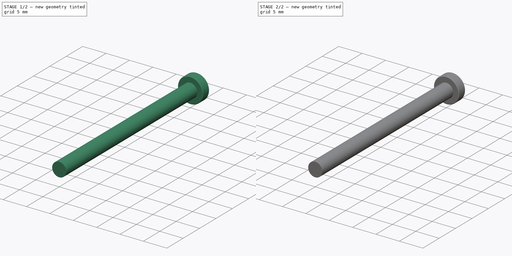
[diagram: build sequence overview — one tinted view per stage of 2, left to right]
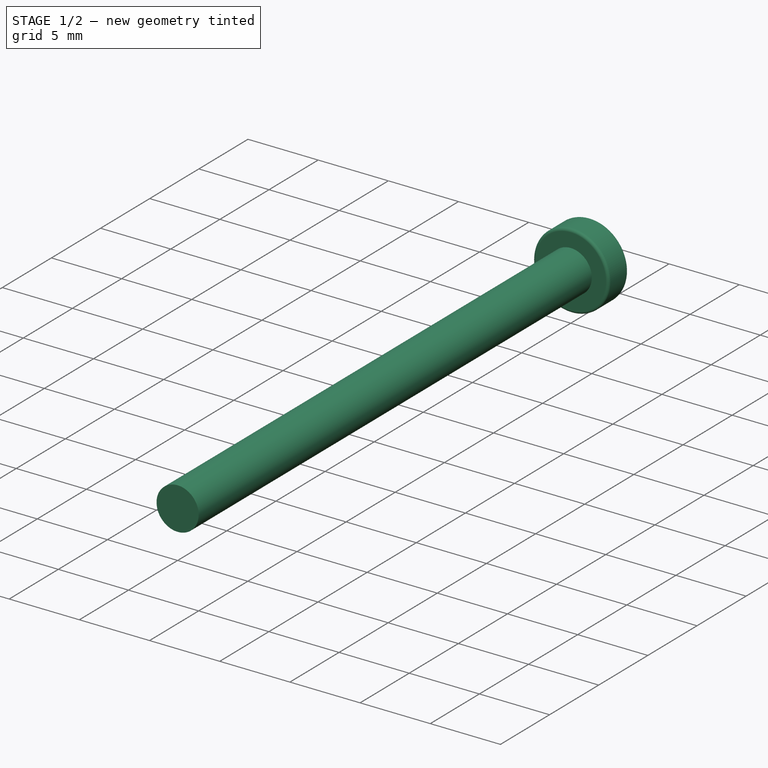
[diagram: stage 1 of 2 — iso view after this stage's code; geometry added in this stage tinted green]
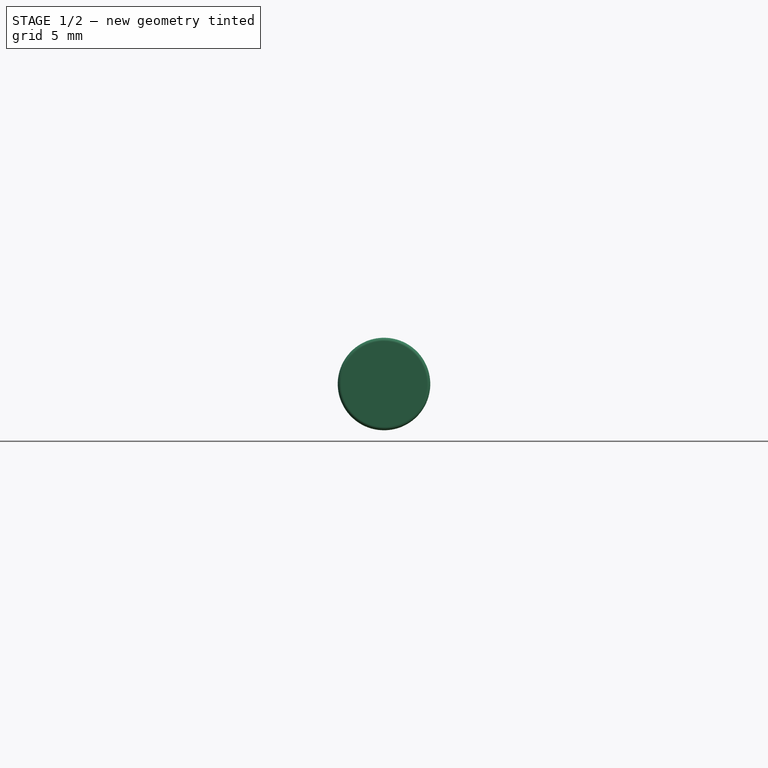
[diagram: stage 1 of 2 — front view after this stage's code; geometry added in this stage tinted green]
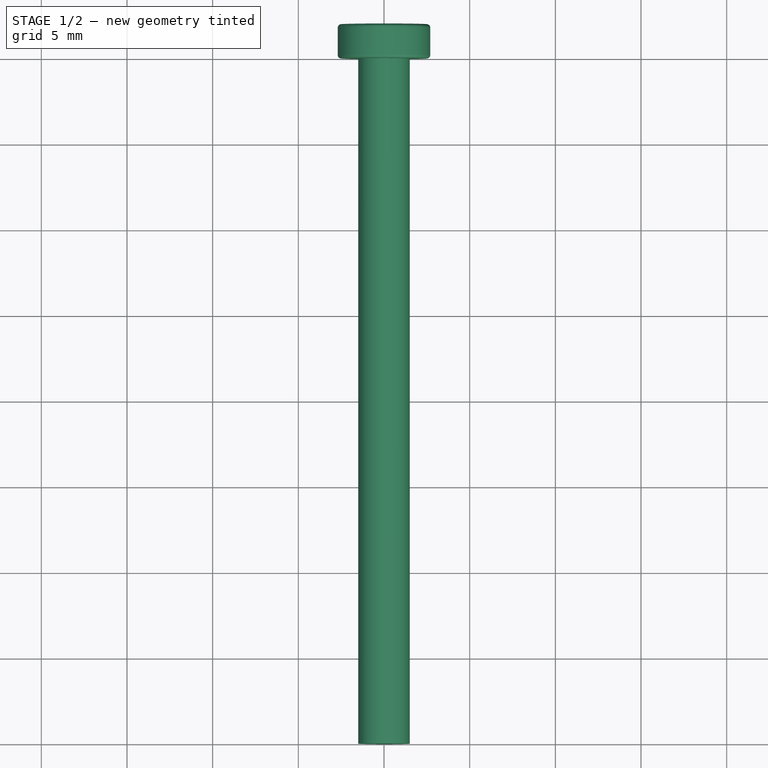
[diagram: stage 1 of 2 — top view after this stage's code; geometry added in this stage tinted green]
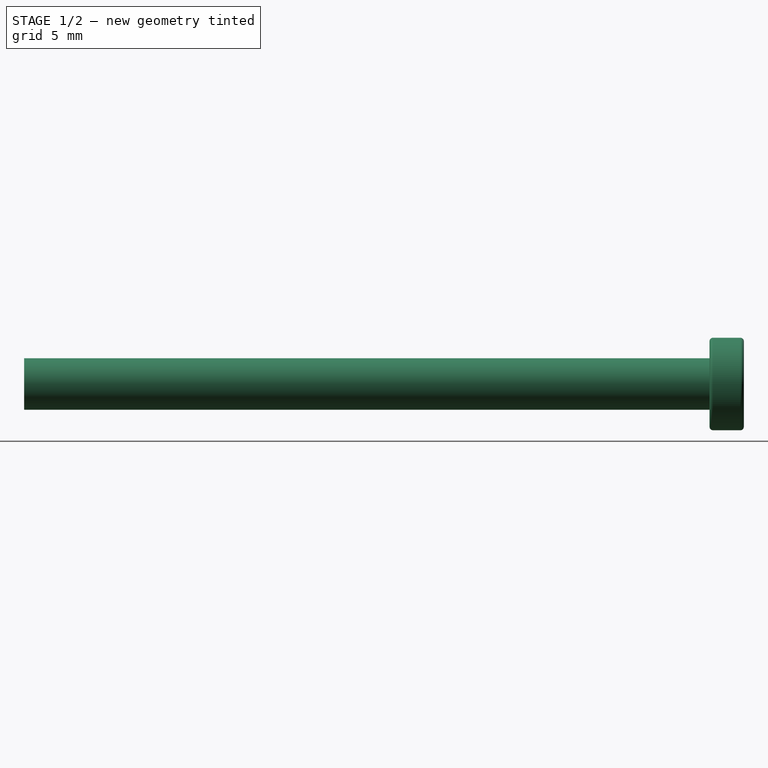
[diagram: stage 1 of 2 — right view after this stage's code; geometry added in this stage tinted green]
FCSTD DOCUMENT  (FreeCAD 1.0R39319 (Git))
Label: Screw-M3x40mm
License: All rights reserved
LicenseURL: http://en.wikipedia.org/wiki/All_rights_reserved
objects: Sketcher::SketchObject×2, PartDesign::Fillet×2, PartDesign::Revolution×1, PartDesign::Pocket×1, PartDesign::Body×1
note: 17 computed .brp shape members not serialized (recipe doc carries the construction recipe); baked Part::Feature solids carry a one-line shape summary decoded from their .brp

FEATURE [Sketcher::SketchObject] Sketch
  ArcFitTolerance = 0
  AttachmentSupport = -> [XY_Plane]
  FullyConstrained = true
  MakeInternals = false
  MapMode = 5
  sketch-geometry (6):
    g0: LineSegment StartX=0 StartY=0 StartZ=0 EndX=0 EndY=42 EndZ=0
    g1: LineSegment StartX=0 StartY=42 StartZ=0 EndX=2.7 EndY=42 EndZ=0
    g2: LineSegment StartX=2.7 StartY=42 StartZ=0 EndX=2.7 EndY=40 EndZ=0
    g3: LineSegment StartX=2.7 StartY=40 StartZ=0 EndX=1.5 EndY=40 EndZ=0
    g4: LineSegment StartX=1.5 StartY=40 StartZ=0 EndX=1.5 EndY=0 EndZ=0
    g5: LineSegment StartX=1.5 StartY=0 StartZ=0 EndX=0 EndY=0 EndZ=0
  constraints (17):
    c: Coincident(g-1,g0)
    c: PointOnObject(g0,g-2)
    c: Coincident(g0,g1)
    c: Horizontal(g1)
    c: Coincident(g1,g2)
    c: Vertical(g2)
    c: Coincident(g2,g3)
    c: Horizontal(g3)
    c: Coincident(g3,g4)
    c: PointOnObject(g4,g-1)
    c: Vertical(g4)
    c: Coincident(g4,g5)
    c: Coincident(g5,g0)
    c: DistanceY(g4,g4) = 40
    c: DistanceY(g3,g1) = 2
    c: DistanceX(g1,g1) = 2.7
    c: DistanceX(g5,g5) = 1.5
FEATURE [PartDesign::Revolution] Revolution
  AllowMultiFace = false
  Angle = 360
  Angle2 = 60
  Axis = (0,1,0)
  Base = (0,0,0)
  Profile = -> Sketch
  ReferenceAxis = -> Sketch [V_Axis]
  Reversed = true
  Suppressed = false
  Type = 0
FEATURE [PartDesign::Fillet] Fillet
  Base = -> Revolution [Edge2,Edge1]
  BaseFeature = -> Revolution
  Radius = 0.2
  Refine = true
  SupportTransform = false
  Suppressed = false
  UseAllEdges = false
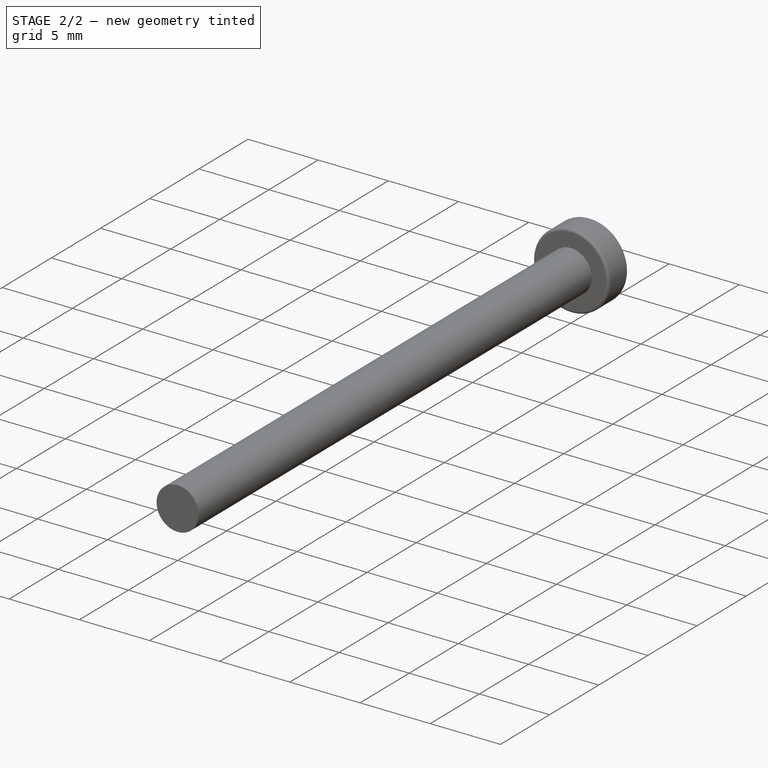
[diagram: stage 2 of 2 — iso view after this stage's code; geometry added in this stage tinted green]
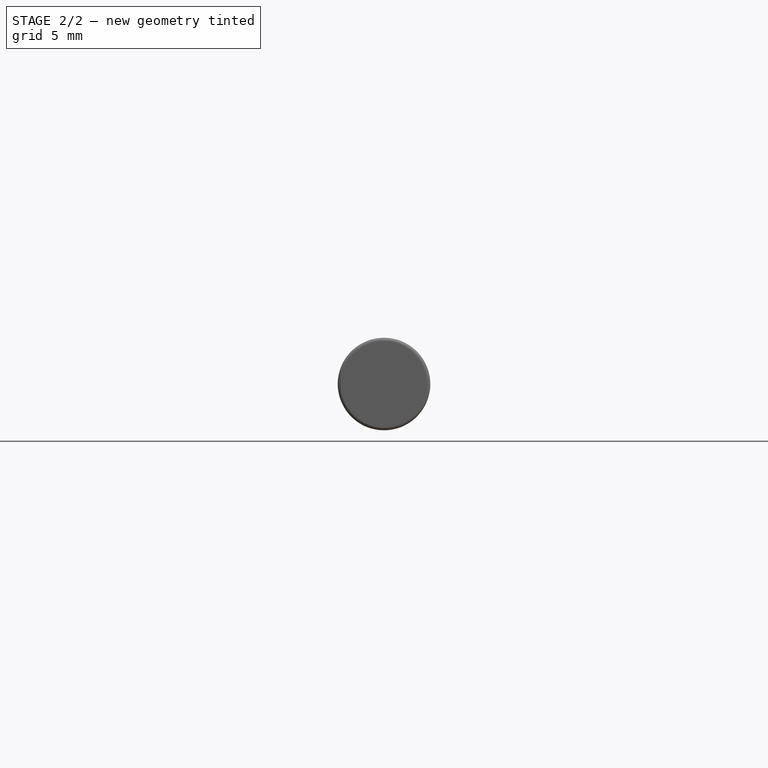
[diagram: stage 2 of 2 — front view after this stage's code; geometry added in this stage tinted green]
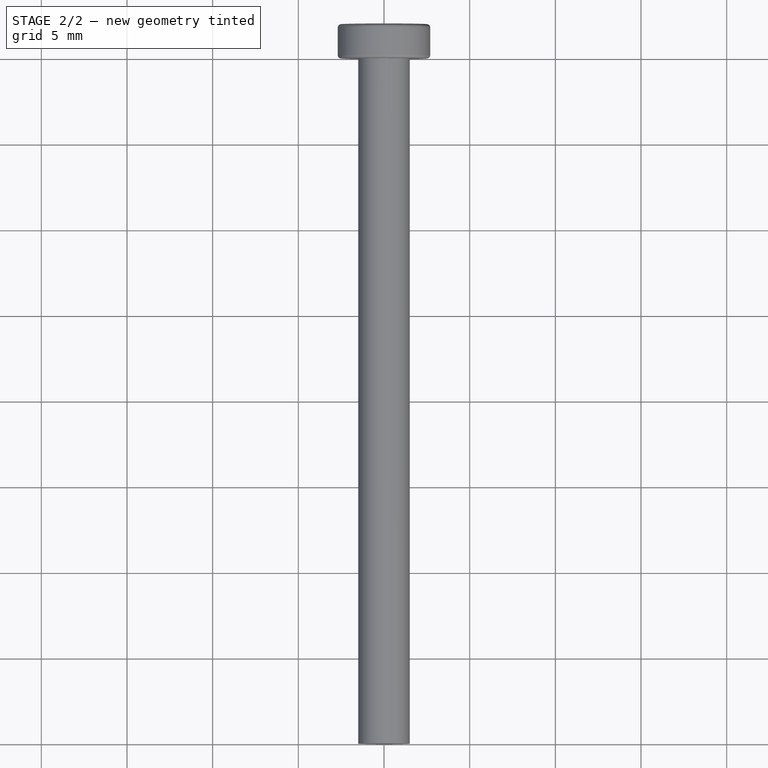
[diagram: stage 2 of 2 — top view after this stage's code; geometry added in this stage tinted green]
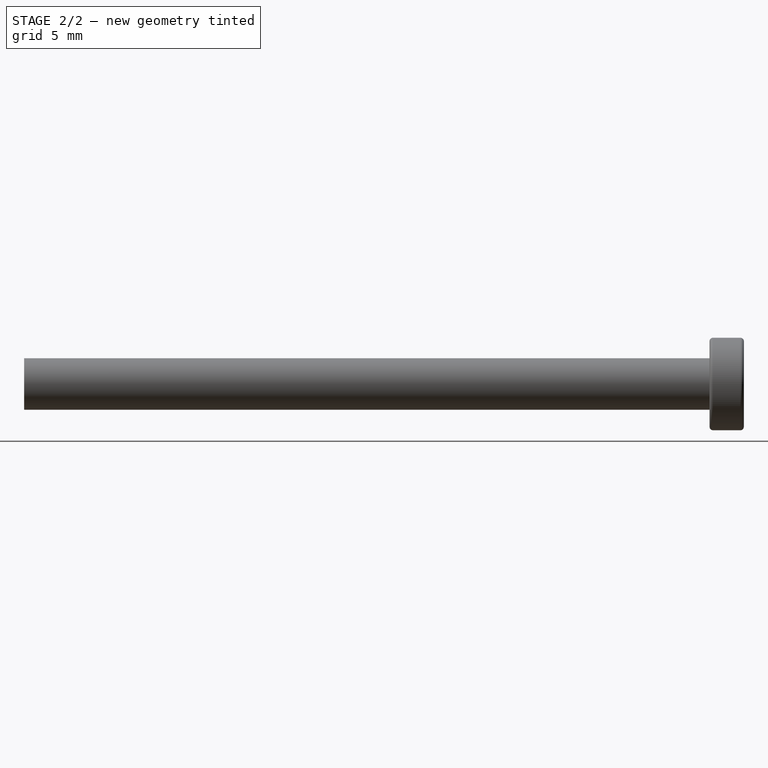
[diagram: stage 2 of 2 — right view after this stage's code; geometry added in this stage tinted green]
FEATURE [Sketcher::SketchObject] Sketch001
  ArcFitTolerance = 0
  AttachmentSupport = -> [Fillet]
  FullyConstrained = true
  MakeInternals = false
  MapMode = 5
  Placement = pos=(0,42,0) rot=(0,0.707107,0.707107;3.14159rad)
  sketch-geometry (12):
    g0: LineSegment StartX=0.5 StartY=1.5 StartZ=0 EndX=0.5 EndY=0.5 EndZ=0
    g1: LineSegment StartX=0.5 StartY=0.5 StartZ=0 EndX=1.5 EndY=0.5 EndZ=0
    g2: LineSegment StartX=1.5 StartY=0.5 StartZ=0 EndX=1.5 EndY=-0.5 EndZ=0
    g3: LineSegment StartX=1.5 StartY=-0.5 StartZ=0 EndX=0.5 EndY=-0.5 EndZ=0
    g4: LineSegment StartX=0.5 StartY=-0.5 StartZ=0 EndX=0.5 EndY=-1.5 EndZ=0
    g5: LineSegment StartX=0.5 StartY=1.5 StartZ=0 EndX=-0.5 EndY=1.5 EndZ=0
    g6: LineSegment StartX=-0.5 StartY=1.5 StartZ=0 EndX=-0.5 EndY=0.5 EndZ=0
    g7: LineSegment StartX=-0.5 StartY=0.5 StartZ=0 EndX=-1.5 EndY=0.5 EndZ=0
    g8: LineSegment StartX=-1.5 StartY=-0.5 StartZ=0 EndX=-0.5 EndY=-0.5 EndZ=0
    g9: LineSegment StartX=-0.5 StartY=-0.5 StartZ=0 EndX=-0.5 EndY=-1.5 EndZ=0
    g10: LineSegment StartX=-0.5 StartY=-1.5 StartZ=0 EndX=0.5 EndY=-1.5 EndZ=0
    g11: LineSegment StartX=-1.5 StartY=0.5 StartZ=0 EndX=-1.5 EndY=-0.5 EndZ=0
  constraints (32):
    c: Vertical(g0)
    c: Coincident(g0,g1)
    c: Horizontal(g1)
    c: Coincident(g1,g2)
    c: Coincident(g2,g3)
    c: Horizontal(g3)
    c: Coincident(g3,g4)
    c: Vertical(g4)
    c: Symmetric(g2,g1,g-1)
    c: Coincident(g0,g5)
    c: Coincident(g5,g6)
    c: Vertical(g6)
    c: Coincident(g6,g7)
    c: Horizontal(g7)
    c: Horizontal(g8)
    c: Coincident(g8,g9)
    c: Vertical(g9)
    c: Coincident(g9,g10)
    c: Coincident(g10,g4)
    c: Coincident(g11,g7)
    c: Coincident(g11,g8)
    c: Symmetric(g5,g0,g-2)
    c: Symmetric(g4,g9,g-2)
    c: Symmetric(g7,g8,g-1)
    c: Equal(g5,g2)
    c: Equal(g2,g11)
    c: Equal(g11,g10)
    c: DistanceY(g2,g2) = 1
    c: Equal(g0,g1)
    c: Equal(g3,g4)
    c: Equal(g9,g8)
    c: DistanceY(g0,g0) = 1
FEATURE [PartDesign::Pocket] Pocket
  AllowMultiFace = false
  BaseFeature = -> Fillet
  Direction = (0,-1,2e-16)
  Length = 1.3
  Length2 = 100
  Profile = -> Sketch001
  Suppressed = false
  Type = 0
FEATURE [PartDesign::Fillet] Fillet001
  Base = -> Pocket [Edge6,Edge5,Edge4,Edge3,Edge2,Edge13,Edge11,Edge12,Edge9,Edge8,Edge7]
  BaseFeature = -> Pocket
  Radius = 0.2
  Refine = true
  SupportTransform = false
  Suppressed = false
  UseAllEdges = false
FEATURE [PartDesign::Body] Body
  AllowCompound = false
  Group = -> [Sketch,Revolution,Fillet,Sketch001,Pocket,Fillet001]
  Origin = -> Origin
  Tip = -> Fillet001
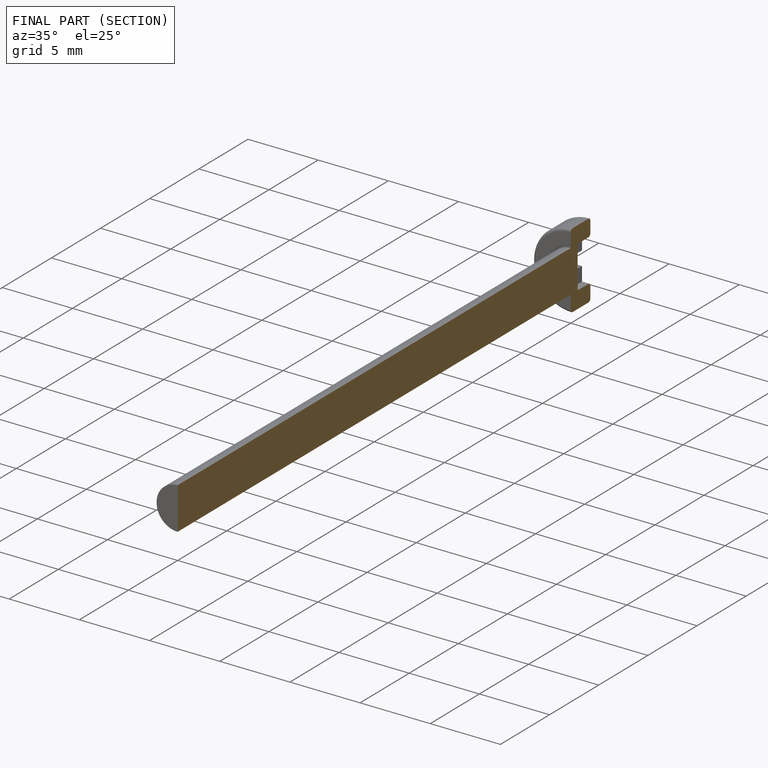
[diagram: finished part — half-section view (interior)]
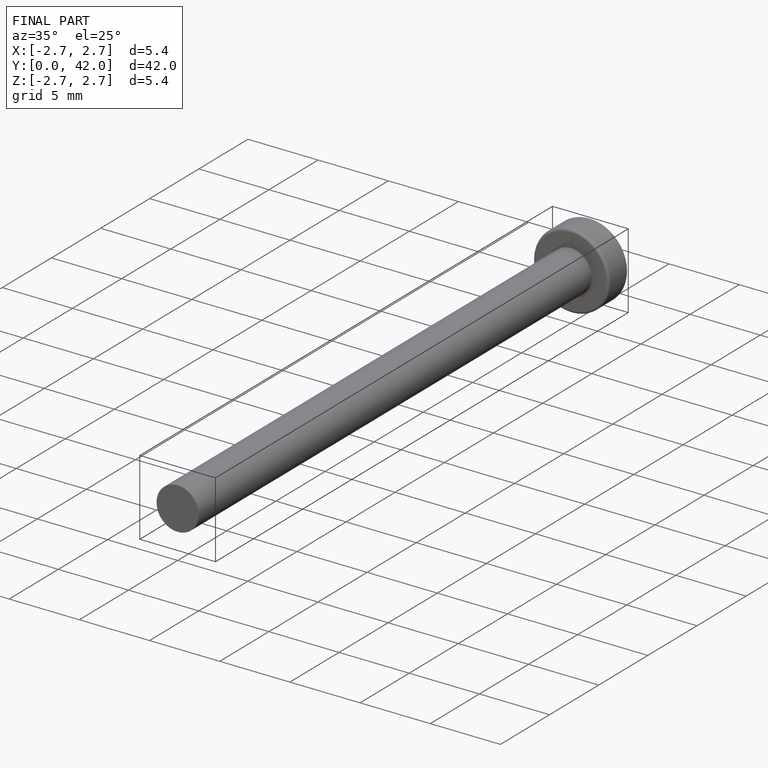
[diagram: finished part — iso view with bounding-box wireframe]
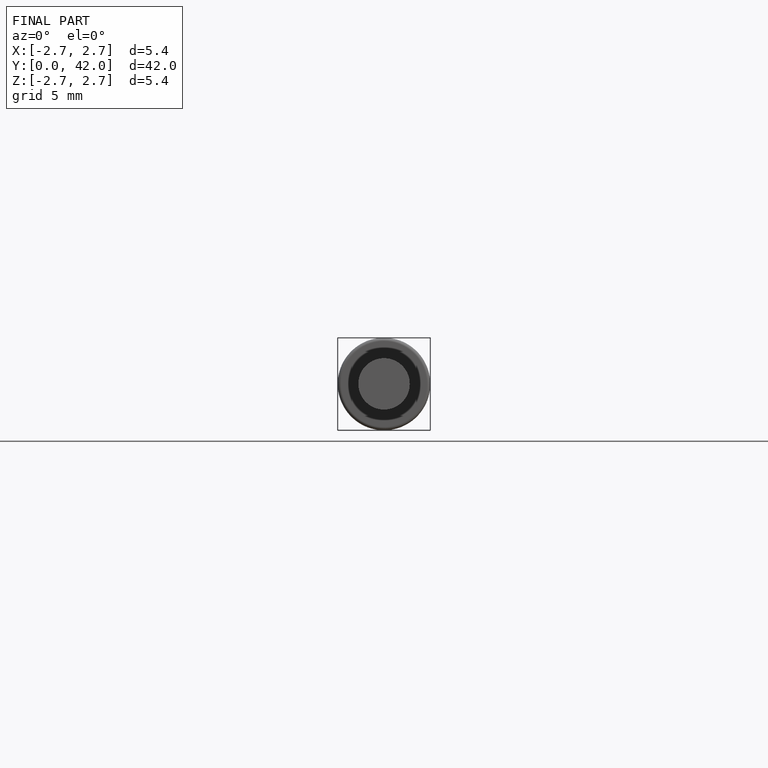
[diagram: finished part — front view with bounding-box wireframe]
